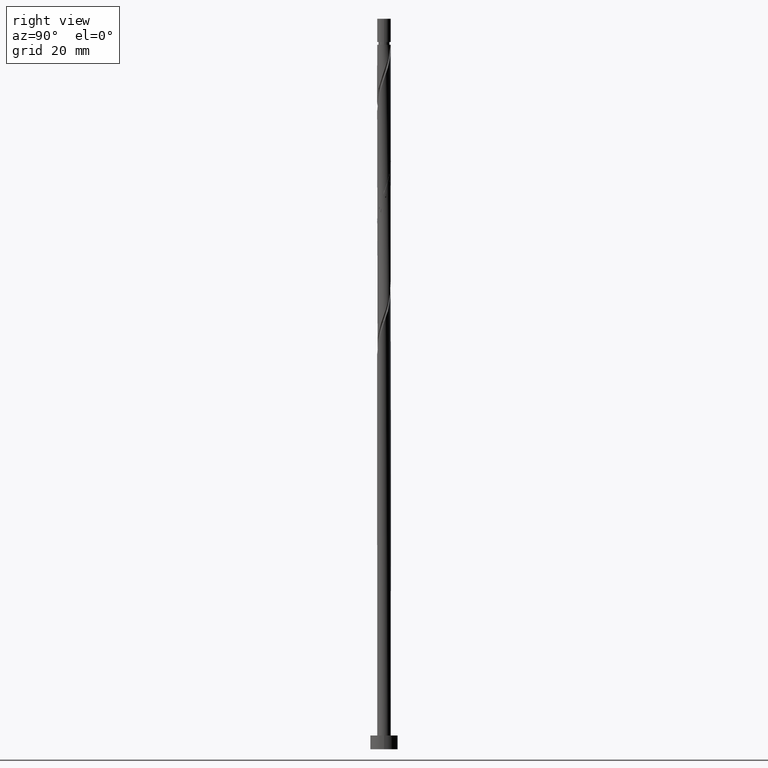
[diagram: clean part render]
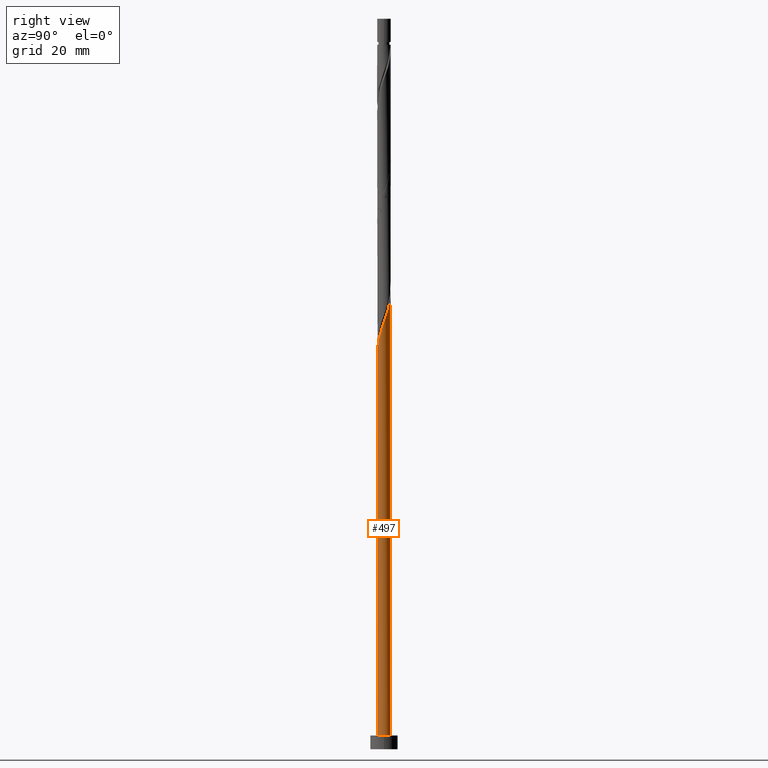
[diagram: same view with one face highlighted and labeled with its STEP entity id]
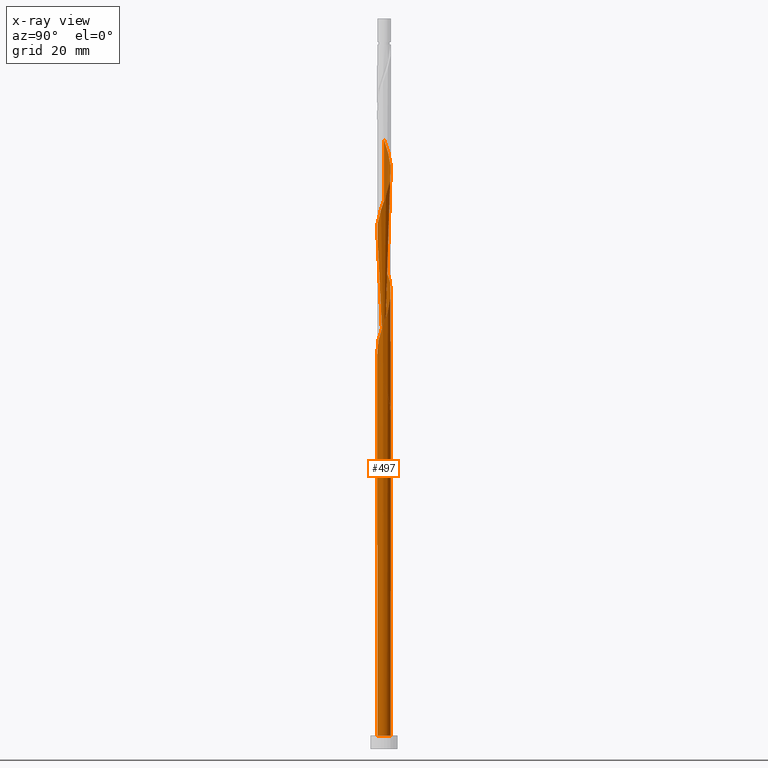
[diagram: x-ray of the same camera — body ghosted, the highlighted face saturated]
A machine part, right view. The second image highlights one B-rep face of the part: STEP entity #497.
The next image is the same camera in x-ray: the body ghosted, the highlighted face saturated — about 0% of this face is hidden behind the body in this view.
In plain terms, the highlighted cylindrical surface (bore or boss wall) has radius 1.5 mm, axis along (-0, -0, -1).
Its self-contained STEP definition (entity closure, byte-faithful):
#7 = CARTESIAN_POINT ( 'NONE',  ( -1.306425335299755686, 0.7370568792752213438, 104.6169680509344033 ) ) ;
#16 = CIRCLE ( 'NONE', #1404, 1.500000000000000222 ) ;
#33 = LINE ( 'NONE', #1354, #732 ) ;
#50 = CARTESIAN_POINT ( 'NONE',  ( 1.461158848907852859, -0.3391383467823813058, 92.49575592972223603 ) ) ;
#64 = VECTOR ( 'NONE', #248, 1000.000000000000000 ) ;
#69 = CARTESIAN_POINT ( 'NONE',  ( -1.213159217434433668, 0.8821817914431653307, 79.16242259638890744 ) ) ;
#72 = ORIENTED_EDGE ( 'NONE', *, *, #981, .F. ) ;
#79 = ORIENTED_EDGE ( 'NONE', *, *, #608, .T. ) ;
#99 = CARTESIAN_POINT ( 'NONE',  ( -1.200452554620305978, 0.9248924852164310817, 77.34424077820710863 ) ) ;
#101 = CARTESIAN_POINT ( 'NONE',  ( -1.045853010636306202, 1.075263446855226235, 130.0715135054798566 ) ) ;
#113 = CARTESIAN_POINT ( 'NONE',  ( -1.213159217434436110, -0.8821817914431666630, 109.4654528994192475 ) ) ;
#122 = CARTESIAN_POINT ( 'NONE',  ( -0.7005518949784527161, 1.326358564808968188, 102.1927256266919954 ) ) ;
#123 = VERTEX_POINT ( 'NONE', #144 ) ;
#129 = CARTESIAN_POINT ( 'NONE',  ( -0.5098503233045978966, 1.427082721123916098, 101.5866650206313437 ) ) ;
#137 = CARTESIAN_POINT ( 'NONE',  ( -1.497517962423707383, -0.08625515763335786512, 107.0412104751768254 ) ) ;
#140 = CIRCLE ( 'NONE', #1457, 1.500000000000000222 ) ;
#144 = CARTESIAN_POINT ( 'NONE',  ( -1.500000000000002442, -1.316200221907664786E-15, 80.13114993526986041 ) ) ;
#160 = CARTESIAN_POINT ( 'NONE',  ( -1.213159217434436110, -0.8821817914431666630, 82.79878623275257610 ) ) ;
#177 = CARTESIAN_POINT ( 'NONE',  ( 0.000000000000000000, 0.000000000000000000, 3.000000000000000000 ) ) ;
#187 = ORIENTED_EDGE ( 'NONE', *, *, #699, .T. ) ;
#196 = CARTESIAN_POINT ( 'NONE',  ( -1.045853010636306202, 1.075263446855226235, 76.73818017214649956 ) ) ;
#215 = CARTESIAN_POINT ( 'NONE',  ( -0.7005518949784527161, 1.326358564808968188, 128.8593922933586668 ) ) ;
#223 = CARTESIAN_POINT ( 'NONE',  ( 0.000000000000000000, 0.000000000000000000, 74.31393774790407747 ) ) ;
#248 = DIRECTION ( 'NONE',  ( -0.000000000000000000, -0.000000000000000000, -1.000000000000000000 ) ) ;
#262 = CARTESIAN_POINT ( 'NONE',  ( 1.485116343010915330, 0.3015657354974667359, 120.9806044145707631 ) ) ;
#273 = CARTESIAN_POINT ( 'NONE',  ( -0.3426257832300795281, -1.476184276359228109, 112.4957559297222360 ) ) ;
#280 = CARTESIAN_POINT ( 'NONE',  ( 0.2984962311319867556, -1.470000000000002416, 87.64727108123740607 ) ) ;
#283 = CARTESIAN_POINT ( 'NONE',  ( -1.086320624467306040, 1.056607754070165717, 78.55636199032831257 ) ) ;
#294 = CARTESIAN_POINT ( 'NONE',  ( -0.7446362021362263883, -1.319859602977673019, 84.61696805093437490 ) ) ;
#301 = CARTESIAN_POINT ( 'NONE',  ( -1.497517962423707383, -0.08625515763335786512, 80.37454380851015401 ) ) ;
#308 = CARTESIAN_POINT ( 'NONE',  ( -1.500000000000002442, 7.702762662300539942E-16, 133.4644832686032032 ) ) ;
#316 = VERTEX_POINT ( 'NONE', #1475 ) ;
#344 = CARTESIAN_POINT ( 'NONE',  ( -0.2984962311319864225, 1.470000000000002416, 74.31393774790407747 ) ) ;
#350 = CARTESIAN_POINT ( 'NONE',  ( 1.086320624467308482, 1.056607754070166161, 96.73818017214649956 ) ) ;
#357 = CARTESIAN_POINT ( 'NONE',  ( -0.08714213895937542032, 1.512917278876088512, 127.0412104751767970 ) ) ;
#360 = CARTESIAN_POINT ( 'NONE',  ( 1.339997810401563738, 0.7077558288161661659, 95.52605896002529562 ) ) ;
#368 = CARTESIAN_POINT ( 'NONE',  ( -0.08714213895937542032, 1.512917278876088512, 100.3745438085101398 ) ) ;
#374 = CARTESIAN_POINT ( 'NONE',  ( 1.213159217434436110, 0.8821817914431661078, 96.13211956608591890 ) ) ;
#380 = CARTESIAN_POINT ( 'NONE',  ( 1.497517962423707383, 0.08625515763335768471, 120.3745438085101824 ) ) ;
#384 = CARTESIAN_POINT ( 'NONE',  ( 0.1277418221353521510, 1.494550777617658754, 126.4351498691161879 ) ) ;
#390 = CARTESIAN_POINT ( 'NONE',  ( 1.213159217434436110, 0.8821817914431661078, 122.7987862327525761 ) ) ;
#393 = CARTESIAN_POINT ( 'NONE',  ( -1.500000000000000222, 0.000000000000000000, 3.000000000000000000 ) ) ;
#396 = EDGE_CURVE ( 'NONE', #803, #316, #507, .T. ) ;
#402 = CARTESIAN_POINT ( 'NONE',  ( 1.200452554620305756, -0.9248924852164310817, 117.3442407782071086 ) ) ;
#407 = CARTESIAN_POINT ( 'NONE',  ( 1.306425335299755464, -0.7370568792752213438, 91.28363471760104630 ) ) ;
#410 = CARTESIAN_POINT ( 'NONE',  ( -0.9154784133017651593, 1.188233678523918035, 77.95030138426770350 ) ) ;
#411 = CARTESIAN_POINT ( 'NONE',  ( -0.5436309926831534023, -1.398021939668451008, 111.8896953236616980 ) ) ;
#414 = VERTEX_POINT ( 'NONE', #530 ) ;
#417 = FACE_OUTER_BOUND ( 'NONE', #1523, .T. ) ;
#443 = EDGE_CURVE ( 'NONE', #1533, #464, #16, .T. ) ;
#452 =( BOUNDED_CURVE ( )  B_SPLINE_CURVE ( 2, ( #1375, #549, #301, #536, #782, #1248, #160, #1006, #1471, #294, #878, #1347, #646, #1480, #280, #757, #1239, #1017, #889, #638, #407, #1120, #50, #1489, #1366, #774, #1136, #360, #374, #350, #1205, #1190, #715, #1198, #942, #368, #1431, #129, #122, #1413, #1077, #609, #7, #844, #1316, #698, #137, #972, #1446, #1181, #113, #850, #586, #1000, #411, #273, #751, #501, #736, #641, #768, #1474, #978, #402, #1460, #1123, #1360, #1336, #380, #262, #742, #478, #390, #485, #738, #939, #963, #957, #384, #357, #868, #860, #215, #688, #101, #1530, #660, #1246, #702, #795, #308 ),
 .UNSPECIFIED., .F., .T. ) 
 B_SPLINE_CURVE_WITH_KNOTS ( ( 3, 2, 2, 2, 2, 2, 2, 2, 2, 2, 2, 2, 2, 2, 2, 2, 2, 2, 2, 2, 2, 2, 2, 2, 2, 2, 2, 2, 2, 2, 2, 2, 2, 2, 2, 2, 2, 2, 2, 2, 2, 2, 2, 2, 2, 3 ),
 ( 0.05452521624175111353, 0.05681818181818176772, 0.06818181818181823228, 0.07954545454545458583, 0.09090909090909093937, 0.1022727272727272929, 0.1136363636363636465, 0.1250000000000000000, 0.1363636363636363535, 0.1477272727272727071, 0.1590909090909090606, 0.1704545454545454142, 0.1818181818181817677, 0.1931818181818182323, 0.2045454545454545858, 0.2159090909090909394, 0.2272727272727272929, 0.2386363636363636465, 0.2500000000000000000, 0.2613636363636363535, 0.2727272727272727071, 0.2840909090909090606, 0.2954545454545454142, 0.3068181818181817677, 0.3181818181818182323, 0.3295454545454545858, 0.3409090909090909394, 0.3522727272727272929, 0.3636363636363636465, 0.3750000000000000000, 0.3863636363636363535, 0.3977272727272727071, 0.4090909090909090606, 0.4204545454545454142, 0.4318181818181817677, 0.4431818181818182323, 0.4545454545454545858, 0.4659090909090909394, 0.4772727272727272929, 0.4886363636363636465, 0.5000000000000000000, 0.5113636363636363535, 0.5227272727272727071, 0.5340909090909091717, 0.5454545454545454142, 0.5545252162417514397 ),
 .UNSPECIFIED. ) 
 CURVE ( )  GEOMETRIC_REPRESENTATION_ITEM ( )  RATIONAL_B_SPLINE_CURVE ( ( 0.9061101570135735583, 0.9072237824201557777, 0.9090909090909334855, 0.8998376744372357239, 0.9090909090909334855, 0.8998376744372357239, 0.9090909090909334855, 0.8998376744372357239, 0.9090909090909334855, 0.8998376744372357239, 0.9090909090909334855, 0.8998376744372357239, 0.9090909090909334855, 0.8998376744372357239, 0.9090909090909334855, 0.8998376744372357239, 0.9090909090909334855, 0.8998376744372357239, 0.9090909090909334855, 0.8998376744372357239, 0.9090909090909334855, 0.8998376744372357239, 0.9090909090909334855, 0.8998376744372357239, 0.9090909090909334855, 0.8998376744372357239, 0.9090909090909334855, 0.8998376744372357239, 0.9090909090909334855, 0.8998376744372357239, 0.9090909090909334855, 0.8998376744372357239, 0.9090909090909334855, 0.8998376744372357239, 0.9090909090909334855, 0.8998376744372357239, 0.9090909090909334855, 0.8998376744372357239, 0.9090909090909334855, 0.8998376744372357239, 0.9090909090909334855, 0.8998376744372357239, 0.9090909090909334855, 0.8998376744372357239, 0.9090909090909334855, 0.8998376744372357239, 0.9090909090909334855, 0.8998376744372357239, 0.9090909090909334855, 0.8998376744372357239, 0.9090909090909334855, 0.8998376744372357239, 0.9090909090909334855, 0.8998376744372357239, 0.9090909090909334855, 0.8998376744372357239, 0.9090909090909334855, 0.8998376744372357239, 0.9090909090909334855, 0.8998376744372357239, 0.9090909090909334855, 0.8998376744372357239, 0.9090909090909334855, 0.8998376744372357239, 0.9090909090909334855, 0.8998376744372357239, 0.9090909090909334855, 0.8998376744372357239, 0.9090909090909334855, 0.8998376744372357239, 0.9090909090909334855, 0.8998376744372357239, 0.9090909090909334855, 0.8998376744372357239, 0.9090909090909334855, 0.8998376744372357239, 0.9090909090909334855, 0.8998376744372357239, 0.9090909090909334855, 0.8998376744372357239, 0.9090909090909334855, 0.8998376744372357239, 0.9090909090909334855, 0.8998376744372357239, 0.9090909090909334855, 0.8998376744372357239, 0.9090909090909334855, 0.8998376744372357239, 0.9090909090909334855, 0.9017048011080132097, 0.9061101570135737804 ) ) 
 REPRESENTATION_ITEM ( '' )  );
#464 = VERTEX_POINT ( 'NONE', #393 ) ;
#478 = CARTESIAN_POINT ( 'NONE',  ( 1.339997810401563738, 0.7077558288161661659, 122.1927256266919386 ) ) ;
#485 = CARTESIAN_POINT ( 'NONE',  ( 1.086320624467308482, 1.056607754070166161, 123.4048468388131710 ) ) ;
#497 = ADVANCED_FACE ( 'NONE', ( #417 ), #903, .T. ) ;
#501 = CARTESIAN_POINT ( 'NONE',  ( 0.08714213895937560073, -1.512917278876088512, 113.7078771418434684 ) ) ;
#507 =( BOUNDED_CURVE ( )  B_SPLINE_CURVE ( 2, ( #1106, #1263, #517, #1019, #1114, #1473, #69, #283, #410, #655, #633, #992, #1138, #544, #784 ),
 .UNSPECIFIED., .F., .T. ) 
 B_SPLINE_CURVE_WITH_KNOTS ( ( 3, 2, 2, 2, 2, 2, 2, 3 ),
 ( 0.9295252162417512176, 0.9318181818181817677, 0.9431818181818182323, 0.9545454545454545858, 0.9659090909090909394, 0.9772727272727272929, 0.9886363636363636465, 1.000000000000000000 ),
 .UNSPECIFIED. ) 
 CURVE ( )  GEOMETRIC_REPRESENTATION_ITEM ( )  RATIONAL_B_SPLINE_CURVE ( ( 0.9061101570135670080, 0.9072237824201492273, 0.9090909090909268242, 0.8998376744372288405, 0.9090909090909268242, 0.8998376744372288405, 0.9090909090909268242, 0.8998376744372288405, 0.9090909090909268242, 0.8998376744372288405, 0.9090909090909268242, 0.8998376744372288405, 0.9090909090909268242, 0.8998376744372288405, 0.9090909090909268242 ) ) 
 REPRESENTATION_ITEM ( '' )  );
#517 = CARTESIAN_POINT ( 'NONE',  ( -1.497517962423704718, 0.08625515763335817043, 81.58666502063135795 ) ) ;
#530 = CARTESIAN_POINT ( 'NONE',  ( -1.500000000000002442, 7.702762662300539942E-16, 133.4644832686032032 ) ) ;
#536 = CARTESIAN_POINT ( 'NONE',  ( -1.485116343010915330, -0.3015657354974669024, 80.98060441457073466 ) ) ;
#544 = CARTESIAN_POINT ( 'NONE',  ( 0.08714213895937576726, 1.512917278876086069, 74.91999835396468654 ) ) ;
#549 = CARTESIAN_POINT ( 'NONE',  ( -1.500000000000002665, -0.04316328978573041875, 80.25324793998808559 ) ) ;
#557 = CARTESIAN_POINT ( 'NONE',  ( 0.000000000000000000, 0.000000000000000000, 3.000000000000000000 ) ) ;
#586 = CARTESIAN_POINT ( 'NONE',  ( -0.9154784133017672687, -1.188233678523920034, 110.6775741115404657 ) ) ;
#608 = EDGE_CURVE ( 'NONE', #1004, #316, #1086, .T. ) ;
#609 = CARTESIAN_POINT ( 'NONE',  ( -1.200452554620305978, 0.9248924852164310817, 104.0109074448737800 ) ) ;
#633 = CARTESIAN_POINT ( 'NONE',  ( -0.5436309926831520700, 1.398021939668448566, 76.73818017214648535 ) ) ;
#638 = CARTESIAN_POINT ( 'NONE',  ( 1.200452554620305756, -0.9248924852164310817, 90.67757411154047986 ) ) ;
#641 = CARTESIAN_POINT ( 'NONE',  ( 0.5098503233045976746, -1.427082721123916320, 114.9199983539646723 ) ) ;
#644 = DIRECTION ( 'NONE',  ( -0.000000000000000000, -0.000000000000000000, -1.000000000000000000 ) ) ;
#646 = CARTESIAN_POINT ( 'NONE',  ( -0.1277418221353519845, -1.494550777617658754, 86.43514986911621634 ) ) ;
#655 = CARTESIAN_POINT ( 'NONE',  ( -0.7446362021362251671, 1.319859602977671020, 77.34424077820713705 ) ) ;
#656 =( BOUNDED_CURVE ( )  B_SPLINE_CURVE ( 2, ( #344, #1276, #1268, #1145, #196, #99, #1031, #1056, #1292, #670, #1392 ),
 .UNSPECIFIED., .F., .T. ) 
 B_SPLINE_CURVE_WITH_KNOTS ( ( 3, 2, 2, 2, 2, 3 ),
 ( 0.000000000000000000, 0.01136363636363635354, 0.02272727272727270709, 0.03409090909090906063, 0.04545454545454541417, 0.05452521624175111353 ),
 .UNSPECIFIED. ) 
 CURVE ( )  GEOMETRIC_REPRESENTATION_ITEM ( )  RATIONAL_B_SPLINE_CURVE ( ( 0.9090909090909334855, 0.8998376744372357239, 0.9090909090909334855, 0.8998376744372357239, 0.9090909090909334855, 0.8998376744372357239, 0.9090909090909334855, 0.8998376744372357239, 0.9090909090909334855, 0.9017048011080134318, 0.9061101570135735583 ) ) 
 REPRESENTATION_ITEM ( '' )  );
#660 = CARTESIAN_POINT ( 'NONE',  ( -1.306425335299755686, 0.7370568792752213438, 131.2836347176010463 ) ) ;
#670 = CARTESIAN_POINT ( 'NONE',  ( -1.500000000000002220, 0.1717933910776878736, 79.64518998229854674 ) ) ;
#688 = CARTESIAN_POINT ( 'NONE',  ( -0.8912534666523073135, 1.225634408494020944, 129.4654528994192049 ) ) ;
#698 = CARTESIAN_POINT ( 'NONE',  ( -1.509919581836498992, 0.1290554202307515330, 106.4351498691161879 ) ) ;
#699 = EDGE_CURVE ( 'NONE', #464, #1533, #140, .T. ) ;
#702 = CARTESIAN_POINT ( 'NONE',  ( -1.461158848907852637, 0.3391383467823815279, 132.4957559297222929 ) ) ;
#705 = CARTESIAN_POINT ( 'NONE',  ( -0.2984962311319864225, 1.470000000000002416, 74.31393774790407747 ) ) ;
#715 = CARTESIAN_POINT ( 'NONE',  ( 0.5436309926831531802, 1.398021939668451008, 98.55636199032834099 ) ) ;
#718 = EDGE_CURVE ( 'NONE', #1004, #123, #656, .T. ) ;
#732 = VECTOR ( 'NONE', #644, 1000.000000000000000 ) ;
#736 = CARTESIAN_POINT ( 'NONE',  ( 0.2984962311319867556, -1.470000000000002416, 114.3139377479040775 ) ) ;
#738 = CARTESIAN_POINT ( 'NONE',  ( 0.9154784133017670467, 1.188233678523920034, 124.0109074448737942 ) ) ;
#742 = CARTESIAN_POINT ( 'NONE',  ( 1.412557076706239645, 0.5046607821568165342, 121.5866650206313579 ) ) ;
#751 = CARTESIAN_POINT ( 'NONE',  ( -0.1277418221353519845, -1.494550777617658754, 113.1018165357829020 ) ) ;
#757 = CARTESIAN_POINT ( 'NONE',  ( 0.5098503233045976746, -1.427082721123916320, 88.25333168729802935 ) ) ;
#768 = CARTESIAN_POINT ( 'NONE',  ( 0.7005518949784523830, -1.326358564808968632, 115.5260589600253240 ) ) ;
#774 = CARTESIAN_POINT ( 'NONE',  ( 1.485116343010915330, 0.3015657354974667359, 94.31393774790407747 ) ) ;
#776 = CARTESIAN_POINT ( 'NONE',  ( 0.000000000000000000, 0.000000000000000000, 160.0000000000000000 ) ) ;
#782 = CARTESIAN_POINT ( 'NONE',  ( -1.412557076706239645, -0.5046607821568167562, 81.58666502063137216 ) ) ;
#784 = CARTESIAN_POINT ( 'NONE',  ( 0.2984962311319869221, 1.469999999999999751, 74.31393774790407747 ) ) ;
#788 = ORIENTED_EDGE ( 'NONE', *, *, #396, .F. ) ;
#791 = DIRECTION ( 'NONE',  ( 0.000000000000000000, -0.000000000000000000, -1.000000000000000000 ) ) ;
#795 = CARTESIAN_POINT ( 'NONE',  ( -1.500000000000002887, 0.1717933910776834605, 132.9785233156318895 ) ) ;
#803 = VERTEX_POINT ( 'NONE', #1047 ) ;
#817 = DIRECTION ( 'NONE',  ( 0.000000000000000000, 0.000000000000000000, 1.000000000000000000 ) ) ;
#844 = CARTESIAN_POINT ( 'NONE',  ( -1.412398115979205837, 0.5492212733340116060, 105.2230286569949840 ) ) ;
#850 = CARTESIAN_POINT ( 'NONE',  ( -1.086320624467308038, -1.056607754070166383, 110.0715135054798424 ) ) ;
#860 = CARTESIAN_POINT ( 'NONE',  ( -0.5098503233045978966, 1.427082721123916098, 128.2533316872980151 ) ) ;
#868 = CARTESIAN_POINT ( 'NONE',  ( -0.2984962311319864781, 1.470000000000002416, 127.6472710812373919 ) ) ;
#878 = CARTESIAN_POINT ( 'NONE',  ( -0.5436309926831534023, -1.398021939668451008, 85.22302865699501240 ) ) ;
#889 = CARTESIAN_POINT ( 'NONE',  ( 1.045853010636306202, -1.075263446855226235, 90.07151350547982815 ) ) ;
#903 = CYLINDRICAL_SURFACE ( 'NONE', #985, 1.500000000000000222 ) ;
#911 = DIRECTION ( 'NONE',  ( -1.000000000000000000, 0.000000000000000000, 0.000000000000000000 ) ) ;
#919 = DIRECTION ( 'NONE',  ( 1.000000000000000000, 0.000000000000000000, 0.000000000000000000 ) ) ;
#937 = DIRECTION ( 'NONE',  ( -1.000000000000000000, 0.000000000000000000, 0.000000000000000000 ) ) ;
#939 = CARTESIAN_POINT ( 'NONE',  ( 0.7446362021362260553, 1.319859602977673019, 124.6169680509343891 ) ) ;
#942 = CARTESIAN_POINT ( 'NONE',  ( 0.1277418221353521510, 1.494550777617658754, 99.76848320244954493 ) ) ;
#955 = CARTESIAN_POINT ( 'NONE',  ( -1.500000000000000222, 0.000000000000000000, 160.0000000000000000 ) ) ;
#957 = CARTESIAN_POINT ( 'NONE',  ( 0.3426257832300796946, 1.476184276359228109, 125.8290892630556073 ) ) ;
#963 = CARTESIAN_POINT ( 'NONE',  ( 0.5436309926831531802, 1.398021939668451008, 125.2230286569950550 ) ) ;
#972 = CARTESIAN_POINT ( 'NONE',  ( -1.485116343010915330, -0.3015657354974669024, 107.6472710812374203 ) ) ;
#978 = CARTESIAN_POINT ( 'NONE',  ( 1.045853010636306202, -1.075263446855226235, 116.7381801721465138 ) ) ;
#981 = EDGE_CURVE ( 'NONE', #414, #803, #1080, .T. ) ;
#985 = AXIS2_PLACEMENT_3D ( 'NONE', #776, #1377, #911 ) ;
#992 = CARTESIAN_POINT ( 'NONE',  ( -0.3426257832300788064, 1.476184276359225889, 76.13211956608589048 ) ) ;
#1000 = CARTESIAN_POINT ( 'NONE',  ( -0.7446362021362263883, -1.319859602977673019, 111.2836347176010463 ) ) ;
#1004 = VERTEX_POINT ( 'NONE', #705 ) ;
#1006 = CARTESIAN_POINT ( 'NONE',  ( -1.086320624467308038, -1.056607754070166383, 83.40484683881315675 ) ) ;
#1017 = CARTESIAN_POINT ( 'NONE',  ( 0.8912534666523075355, -1.225634408494020722, 89.46545289941924750 ) ) ;
#1019 = CARTESIAN_POINT ( 'NONE',  ( -1.485116343010913109, 0.3015657354974668469, 80.98060441457074887 ) ) ;
#1031 = CARTESIAN_POINT ( 'NONE',  ( -1.306425335299755686, 0.7370568792752213438, 77.95030138426773192 ) ) ;
#1047 = CARTESIAN_POINT ( 'NONE',  ( -1.500000000000000444, 1.757426432660816093E-15, 81.83005889387165155 ) ) ;
#1056 = CARTESIAN_POINT ( 'NONE',  ( -1.412398115979205837, 0.5492212733340116060, 78.55636199032831257 ) ) ;
#1077 = CARTESIAN_POINT ( 'NONE',  ( -1.045853010636306202, 1.075263446855226235, 103.4048468388131852 ) ) ;
#1080 = LINE ( 'NONE', #955, #64 ) ;
#1086 = CIRCLE ( 'NONE', #1089, 1.500000000000000222 ) ;
#1089 = AXIS2_PLACEMENT_3D ( 'NONE', #223, #791, #937 ) ;
#1106 = CARTESIAN_POINT ( 'NONE',  ( -1.500000000000000444, 1.757426432660816093E-15, 81.83005889387165155 ) ) ;
#1114 = CARTESIAN_POINT ( 'NONE',  ( -1.412557076706236980, 0.5046607821568160901, 80.37454380851012559 ) ) ;
#1120 = CARTESIAN_POINT ( 'NONE',  ( 1.412398115979206503, -0.5492212733340109398, 91.88969532366166959 ) ) ;
#1123 = CARTESIAN_POINT ( 'NONE',  ( 1.412398115979206503, -0.5492212733340109398, 118.5563619903283410 ) ) ;
#1126 = CARTESIAN_POINT ( 'NONE',  ( 1.500000000000000222, 0.000000000000000000, 3.000000000000000000 ) ) ;
#1136 = CARTESIAN_POINT ( 'NONE',  ( 1.412557076706239645, 0.5046607821568165342, 94.91999835396471497 ) ) ;
#1138 = CARTESIAN_POINT ( 'NONE',  ( -0.1277418221353515404, 1.494550777617655868, 75.52605896002529562 ) ) ;
#1145 = CARTESIAN_POINT ( 'NONE',  ( -0.8912534666523073135, 1.225634408494020944, 76.13211956608591890 ) ) ;
#1156 = ORIENTED_EDGE ( 'NONE', *, *, #1387, .F. ) ;
#1181 = CARTESIAN_POINT ( 'NONE',  ( -1.339997810401563294, -0.7077558288161666100, 108.8593922933586242 ) ) ;
#1190 = CARTESIAN_POINT ( 'NONE',  ( 0.7446362021362260553, 1.319859602977673019, 97.95030138426771771 ) ) ;
#1198 = CARTESIAN_POINT ( 'NONE',  ( 0.3426257832300796946, 1.476184276359228109, 99.16242259638895007 ) ) ;
#1205 = CARTESIAN_POINT ( 'NONE',  ( 0.9154784133017670467, 1.188233678523920034, 97.34424077820712284 ) ) ;
#1232 = DIRECTION ( 'NONE',  ( 0.000000000000000000, 0.000000000000000000, 1.000000000000000000 ) ) ;
#1237 = ORIENTED_EDGE ( 'NONE', *, *, #1503, .F. ) ;
#1239 = CARTESIAN_POINT ( 'NONE',  ( 0.7005518949784523830, -1.326358564808968632, 88.85939229335865264 ) ) ;
#1246 = CARTESIAN_POINT ( 'NONE',  ( -1.412398115979205837, 0.5492212733340116060, 131.8896953236616412 ) ) ;
#1248 = CARTESIAN_POINT ( 'NONE',  ( -1.339997810401563294, -0.7077558288161666100, 82.19272562669195281 ) ) ;
#1250 = DIRECTION ( 'NONE',  ( 1.000000000000000000, 0.000000000000000000, 0.000000000000000000 ) ) ;
#1263 = CARTESIAN_POINT ( 'NONE',  ( -1.500000000000000000, 0.04316328978573275021, 81.70796088915339794 ) ) ;
#1268 = CARTESIAN_POINT ( 'NONE',  ( -0.7005518949784527161, 1.326358564808968188, 75.52605896002530983 ) ) ;
#1272 = ORIENTED_EDGE ( 'NONE', *, *, #718, .F. ) ;
#1276 = CARTESIAN_POINT ( 'NONE',  ( -0.5098503233045978966, 1.427082721123916098, 74.91999835396465812 ) ) ;
#1279 = ORIENTED_EDGE ( 'NONE', *, *, #1503, .T. ) ;
#1292 = CARTESIAN_POINT ( 'NONE',  ( -1.461158848907852637, 0.3391383467823815279, 79.16242259638892165 ) ) ;
#1316 = CARTESIAN_POINT ( 'NONE',  ( -1.461158848907852637, 0.3391383467823815279, 105.8290892630555931 ) ) ;
#1330 = ORIENTED_EDGE ( 'NONE', *, *, #443, .T. ) ;
#1336 = CARTESIAN_POINT ( 'NONE',  ( 1.509919581836498992, -0.1290554202307514498, 119.7684832024495449 ) ) ;
#1347 = CARTESIAN_POINT ( 'NONE',  ( -0.3426257832300795281, -1.476184276359228109, 85.82908926305557884 ) ) ;
#1354 = CARTESIAN_POINT ( 'NONE',  ( -1.500000000000000222, 0.000000000000000000, 160.0000000000000000 ) ) ;
#1360 = CARTESIAN_POINT ( 'NONE',  ( 1.461158848907852859, -0.3391383467823813058, 119.1624225963889216 ) ) ;
#1366 = CARTESIAN_POINT ( 'NONE',  ( 1.497517962423707383, 0.08625515763335768471, 93.70787714184349682 ) ) ;
#1375 = CARTESIAN_POINT ( 'NONE',  ( -1.500000000000002442, -1.316200221907664786E-15, 80.13114993526986041 ) ) ;
#1377 = DIRECTION ( 'NONE',  ( -0.000000000000000000, -0.000000000000000000, -1.000000000000000000 ) ) ;
#1387 = EDGE_CURVE ( 'NONE', #123, #414, #452, .T. ) ;
#1392 = CARTESIAN_POINT ( 'NONE',  ( -1.500000000000002442, -1.316200221907664786E-15, 80.13114993526986041 ) ) ;
#1404 = AXIS2_PLACEMENT_3D ( 'NONE', #177, #1232, #1250 ) ;
#1413 = CARTESIAN_POINT ( 'NONE',  ( -0.8912534666523073135, 1.225634408494020944, 102.7987862327525477 ) ) ;
#1431 = CARTESIAN_POINT ( 'NONE',  ( -0.2984962311319864781, 1.470000000000002416, 100.9806044145707489 ) ) ;
#1446 = CARTESIAN_POINT ( 'NONE',  ( -1.412557076706239645, -0.5046607821568167562, 108.2533316872980436 ) ) ;
#1457 = AXIS2_PLACEMENT_3D ( 'NONE', #557, #817, #919 ) ;
#1460 = CARTESIAN_POINT ( 'NONE',  ( 1.306425335299755464, -0.7370568792752213438, 117.9503013842677319 ) ) ;
#1471 = CARTESIAN_POINT ( 'NONE',  ( -0.9154784133017672687, -1.188233678523920034, 84.01090744487378004 ) ) ;
#1473 = CARTESIAN_POINT ( 'NONE',  ( -1.339997810401561518, 0.7077558288161657218, 79.76848320244955914 ) ) ;
#1474 = CARTESIAN_POINT ( 'NONE',  ( 0.8912534666523075355, -1.225634408494020722, 116.1321195660859047 ) ) ;
#1475 = CARTESIAN_POINT ( 'NONE',  ( 0.2984962311319869221, 1.469999999999999751, 74.31393774790407747 ) ) ;
#1480 = CARTESIAN_POINT ( 'NONE',  ( 0.08714213895937560073, -1.512917278876088512, 87.04121047517681120 ) ) ;
#1489 = CARTESIAN_POINT ( 'NONE',  ( 1.509919581836498992, -0.1290554202307514498, 93.10181653578285932 ) ) ;
#1503 = EDGE_CURVE ( 'NONE', #123, #464, #33, .T. ) ;
#1523 = EDGE_LOOP ( 'NONE', ( #72, #1156, #1279, #187, #1330, #1237, #1272, #79, #788 ) ) ;
#1530 = CARTESIAN_POINT ( 'NONE',  ( -1.200452554620305978, 0.9248924852164310817, 130.6775741115404230 ) ) ;
#1533 = VERTEX_POINT ( 'NONE', #1126 ) ;